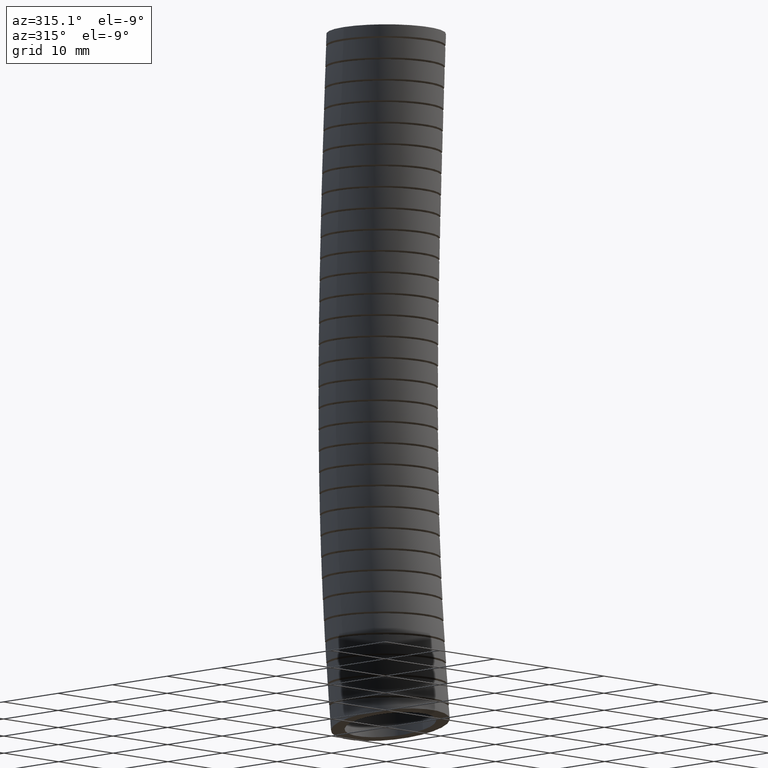
[diagram: clean part render]
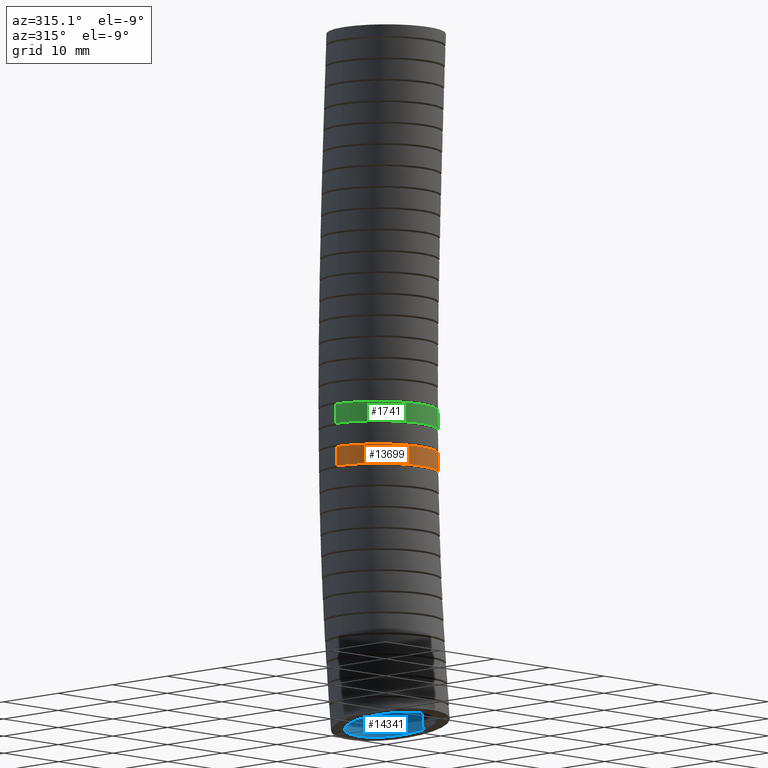
[diagram: same view with three faces highlighted in distinct colors, each labeled with its STEP entity id]
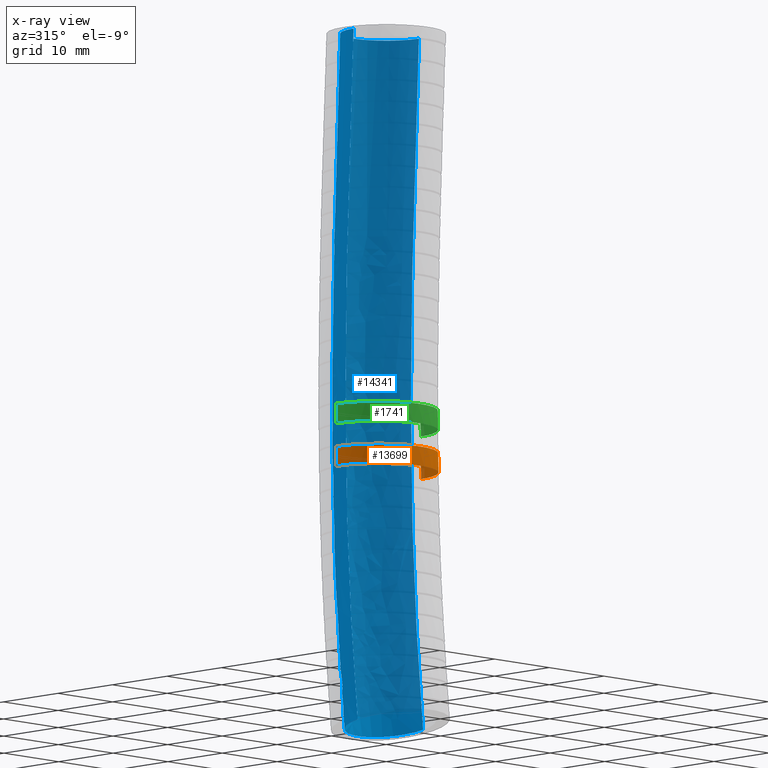
[diagram: x-ray of the same camera — body ghosted, the three highlighted faces saturated]
A machine part, auxiliary view with three faces highlighted in distinct colors.
The next image is the same camera in x-ray (body ghosted, the three faces saturated) — at least one of them is partly hidden behind the body in this view.
Their STEP definitions:

[orange] entity #13699 — the highlighted face is a freeform B-spline surface patch.
#606 = CARTESIAN_POINT ( 'NONE',  ( 0.3050000000000000500, 0.05552407812950403700, -2.158996745682747700 ) ) ;
#607 = B_SPLINE_CURVE_WITH_KNOTS ( 'NONE', 3,
 ( #685, #684, #683, #682 ),
 .UNSPECIFIED., .F., .F.,
 ( 4, 4 ),
 ( 0.6039268719027256500, 0.6319439082966913400 ),
 .UNSPECIFIED. ) ;
#608 = CARTESIAN_POINT ( 'NONE',  ( 0.3050000000000000500, 0.05372310758881908300, -2.258978728082824600 ) ) ;
#645 = CARTESIAN_POINT ( 'NONE',  ( -0.2160703532167436700, -0.1601929831502379400, -2.158996745873789100 ) ) ;
#646 = CARTESIAN_POINT ( 'NONE',  ( -0.2013444713434852100, -0.1735434984261491100, -2.158996745873790900 ) ) ;
#647 = CARTESIAN_POINT ( 'NONE',  ( -0.1859228690909029400, -0.1862015061536203800, -2.158996745873791300 ) ) ;
#648 = CARTESIAN_POINT ( 'NONE',  ( -0.1778165430315290000, -0.1922143481914315200, -2.158996745873790000 ) ) ;
#649 = CARTESIAN_POINT ( 'NONE',  ( -0.1528125071923250000, -0.2089077972052374200, -2.158996745873790400 ) ) ;
#650 = CARTESIAN_POINT ( 'NONE',  ( -0.1352837738353451200, -0.2182580247624102700, -2.158996745873789500 ) ) ;
#651 = CARTESIAN_POINT ( 'NONE',  ( -0.09854926796261420700, -0.2334873408373992200, -2.158996745873789500 ) ) ;
#652 = CARTESIAN_POINT ( 'NONE',  ( -0.07913252365821876700, -0.2393851552424345100, -2.158996745873789500 ) ) ;
#653 = CARTESIAN_POINT ( 'NONE',  ( -0.04005678955513447500, -0.2471616656860284600, -2.158996745873789100 ) ) ;
#654 = CARTESIAN_POINT ( 'NONE',  ( -0.02030109783113058200, -0.2491242151482891700, -2.158996745873788200 ) ) ;
#655 = CARTESIAN_POINT ( 'NONE',  ( 0.009661811462950325000, -0.2491561883190508400, -2.158996745873788600 ) ) ;
#656 = CARTESIAN_POINT ( 'NONE',  ( 0.01975709668933330400, -0.2486701047901576400, -2.158996745873790900 ) ) ;
#657 = CARTESIAN_POINT ( 'NONE',  ( 0.03967496660233263400, -0.2467224047847763300, -2.158996745873790900 ) ) ;
#658 = CARTESIAN_POINT ( 'NONE',  ( 0.04952375081780708400, -0.2452662954858398100, -2.158996745873791300 ) ) ;
#659 = CARTESIAN_POINT ( 'NONE',  ( 0.07874713667787756900, -0.2394839622573247400, -2.158996745873791800 ) ) ;
#660 = CARTESIAN_POINT ( 'NONE',  ( 0.09780194062949937300, -0.2337576078436365000, -2.158996745873789100 ) ) ;
#661 = CARTESIAN_POINT ( 'NONE',  ( 0.1350209045721664800, -0.2184055032823847600, -2.158996745873790000 ) ) ;
#662 = CARTESIAN_POINT ( 'NONE',  ( 0.1525872188871600100, -0.2090236716730639900, -2.158996745873791800 ) ) ;
#663 = CARTESIAN_POINT ( 'NONE',  ( 0.1773845470710647700, -0.1925194661663121600, -2.158996745873790900 ) ) ;
#664 = CARTESIAN_POINT ( 'NONE',  ( 0.1853926913166312200, -0.1866085789379096400, -2.158996745873790900 ) ) ;
#665 = CARTESIAN_POINT ( 'NONE',  ( 0.2008820960759349600, -0.1739493644650735600, -2.158996745873790400 ) ) ;
#666 = CARTESIAN_POINT ( 'NONE',  ( 0.2083841829576125200, -0.1671734393479909500, -2.158996745873789100 ) ) ;
#667 = CARTESIAN_POINT ( 'NONE',  ( 0.2296115997388427100, -0.1460100166946858300, -2.158996745873789100 ) ) ;
#668 = CARTESIAN_POINT ( 'NONE',  ( 0.2422302627812763200, -0.1306811324446731900, -2.158996745873790000 ) ) ;
#669 = CARTESIAN_POINT ( 'NONE',  ( 0.2644300823176574700, -0.09760608516247804000, -2.158996745873789500 ) ) ;
#670 = CARTESIAN_POINT ( 'NONE',  ( 0.2740265475915545400, -0.07972224806242718400, -2.158996745873791300 ) ) ;
#671 = CARTESIAN_POINT ( 'NONE',  ( 0.2892988424305562600, -0.04299853953625917100, -2.158996745873790900 ) ) ;
#672 = CARTESIAN_POINT ( 'NONE',  ( 0.2951095945860873800, -0.02400127102382785400, -2.158996745873789100 ) ) ;
#673 = CARTESIAN_POINT ( 'NONE',  ( 0.3010230848677159000, 0.005470221046165244300, -2.158996745873789500 ) ) ;
#674 = CARTESIAN_POINT ( 'NONE',  ( 0.3025178888908469600, 0.01545610910209722700, -2.158996745873789100 ) ) ;
#675 = CARTESIAN_POINT ( 'NONE',  ( 0.3045015898786372900, 0.03542819802777527600, -2.158996745873789100 ) ) ;
#676 = CARTESIAN_POINT ( 'NONE',  ( 0.3049999999999999900, 0.04545536814849544800, -2.158996745682747700 ) ) ;
#677 = CARTESIAN_POINT ( 'NONE',  ( 0.3050000000000000500, 0.05552407812950403700, -2.158996745682747700 ) ) ;
#679 = B_SPLINE_CURVE_WITH_KNOTS ( 'NONE', 3,
 ( #677, #676, #675, #674, #673, #672, #671, #670, #669, #668, #667, #666, #665, #664, #663, #662, #661, #660, #659, #658, #657, #656, #655, #654, #653, #652, #651, #650, #649, #648, #647, #646, #645, #724, #723, #722, #721, #720, #719, #718, #717, #716, #715 ),
 .UNSPECIFIED., .F., .F.,
 ( 4, 2, 2, 2, 2, 2, 2, 2, 2, 2, 2, 2, 2, 2, 2, 2, 1, 2, 2, 2, 2, 4 ),
 ( 0.0000000000000000000, 0.0007645847613574893300, 0.001529169522714978200, 0.003058339045429956400, 0.004587508568144933600, 0.006116678090859910300, 0.006881262852217398200, 0.007645847613574886100, 0.009175017136289860200, 0.01070418665900483600, 0.01146877142036232200, 0.01223335618171981000, 0.01376252570443478200, 0.01529169522714975500, 0.01682086474986472700, 0.01758544951122221300, 0.01835003427257970300, 0.01911461903393718900, 0.01987920379529467900, 0.02140837331800965800, 0.02293754284072463700, 0.02446671236343961300 ),
 .UNSPECIFIED. ) ;
#682 = CARTESIAN_POINT ( 'NONE',  ( 0.3050000000000000500, 0.05372310758881908300, -2.258978728082824600 ) ) ;
#683 = CARTESIAN_POINT ( 'NONE',  ( 0.3050000000000000500, 0.05442118656744331100, -2.225655353495695100 ) ) ;
#684 = CARTESIAN_POINT ( 'NONE',  ( 0.3050000000000000500, 0.05502004375897306300, -2.192327966736210800 ) ) ;
#685 = CARTESIAN_POINT ( 'NONE',  ( 0.3050000000000000500, 0.05552407812950403700, -2.158996745682747700 ) ) ;
#686 = CARTESIAN_POINT ( 'NONE',  ( 0.03973718846048512200, -0.2490113006111365200, -2.258978728274063700 ) ) ;
#687 = CARTESIAN_POINT ( 'NONE',  ( 0.01985242912400538000, -0.2509740810658708800, -2.258978728274061900 ) ) ;
#688 = CARTESIAN_POINT ( 'NONE',  ( -0.02035010525455989100, -0.2509413165204580400, -2.258978728274061400 ) ) ;
#689 = CARTESIAN_POINT ( 'NONE',  ( -0.04013684577536897500, -0.2489594632021763500, -2.258978728274060100 ) ) ;
#690 = CARTESIAN_POINT ( 'NONE',  ( -0.06936151466278137100, -0.2431406356715986900, -2.258978728274060500 ) ) ;
#691 = CARTESIAN_POINT ( 'NONE',  ( -0.07902660859129269400, -0.2407232146458423700, -2.258978728274061000 ) ) ;
#692 = CARTESIAN_POINT ( 'NONE',  ( -0.09819988211583291500, -0.2349078179767313500, -2.258978728274061000 ) ) ;
#693 = CARTESIAN_POINT ( 'NONE',  ( -0.1077055317459082000, -0.2315029583197430700, -2.258978728274061000 ) ) ;
#694 = CARTESIAN_POINT ( 'NONE',  ( -0.1353580577438489600, -0.2200376456019925700, -2.258978728274061000 ) ) ;
#695 = CARTESIAN_POINT ( 'NONE',  ( -0.1528658860659626300, -0.2106795881659105900, -2.258978728274062800 ) ) ;
#696 = CARTESIAN_POINT ( 'NONE',  ( -0.1777401538879887200, -0.1940768471566060900, -2.258978728274062300 ) ) ;
#697 = CARTESIAN_POINT ( 'NONE',  ( -0.1858378244703216800, -0.1880787908692156400, -2.258978728274061000 ) ) ;
#698 = CARTESIAN_POINT ( 'NONE',  ( -0.2013486790034267300, -0.1753514994261296300, -2.258978728274061000 ) ) ;
#699 = CARTESIAN_POINT ( 'NONE',  ( -0.2087348586017542800, -0.1686520328922428400, -2.258978728274061000 ) ) ;
#700 = CARTESIAN_POINT ( 'NONE',  ( -0.2298164947798399800, -0.1475742193558647300, -2.258978728274060100 ) ) ;
#701 = CARTESIAN_POINT ( 'NONE',  ( -0.2424453803128508700, -0.1322258547035321800, -2.258978728274060100 ) ) ;
#702 = CARTESIAN_POINT ( 'NONE',  ( -0.2591843232138482700, -0.1071984785576389500, -2.258978728274061000 ) ) ;
#703 = CARTESIAN_POINT ( 'NONE',  ( -0.2643599779024637400, -0.09856056822671337100, -2.258978728274060500 ) ) ;
#704 = CARTESIAN_POINT ( 'NONE',  ( -0.2737548485337541500, -0.08098135027092004400, -2.258978728274061400 ) ) ;
#705 = CARTESIAN_POINT ( 'NONE',  ( -0.2822474749125126200, -0.06301973814296216200, -2.258978728274062300 ) ) ;
#706 = CARTESIAN_POINT ( 'NONE',  ( -0.2889568395348479600, -0.04430233410922453800, -2.258978728274061400 ) ) ;
#707 = CARTESIAN_POINT ( 'NONE',  ( -0.2947593488806237700, -0.02520058163349910000, -2.258978728274061400 ) ) ;
#708 = CARTESIAN_POINT ( 'NONE',  ( -0.2972160770550819600, -0.01540185393388456500, -2.258978728274060100 ) ) ;
#709 = CARTESIAN_POINT ( 'NONE',  ( -0.3030688693640173300, 0.01406306044423406800, -2.258978728274060100 ) ) ;
#710 = CARTESIAN_POINT ( 'NONE',  ( -0.3050000000000000500, 0.03383167442773478400, -2.258978728274061900 ) ) ;
#711 = CARTESIAN_POINT ( 'NONE',  ( -0.3050000000000000500, 0.05372310758080686000, -2.258978728274060100 ) ) ;
#712 = B_SPLINE_CURVE_WITH_KNOTS ( 'NONE', 3,
 ( #711, #710, #709, #708, #707, #706, #705, #704, #703, #702, #701, #700, #699, #698, #697, #696, #695, #694, #693, #692, #691, #690, #689, #688, #687, #686, #763, #762, #761, #760, #759, #758, #757, #756, #755, #754, #753, #752, #751, #750, #749, #748, #747, #746, #745 ),
 .UNSPECIFIED., .F., .F.,
 ( 4, 2, 2, 1, 2, 2, 2, 2, 2, 2, 2, 2, 2, 2, 2, 2, 2, 2, 2, 2, 2, 2, 4 ),
 ( 0.02420881050141938900, 0.02572148468539083000, 0.02647782177737655100, 0.02723415886936227100, 0.02799049596134799100, 0.02874683305333371200, 0.03025950723730515600, 0.03101584432929087700, 0.03177218142127660000, 0.03328485560524803400, 0.03404119269723375500, 0.03479752978921947500, 0.03631020397319091600, 0.03782287815716235700, 0.03857921524914807700, 0.03933555234113379800, 0.04084822652510523800, 0.04236090070907667900, 0.04387357489304812000, 0.04462991198503384000, 0.04538624907701956100, 0.04689892326099100200, 0.04841159744496244300 ),
 .UNSPECIFIED. ) ;
#713 = CARTESIAN_POINT ( 'NONE',  ( -0.3050000000000000500, 0.05372310758080686000, -2.258978728274060100 ) ) ;
#714 = CARTESIAN_POINT ( 'NONE',  ( -0.3050000000000000500, 0.05552407812372619400, -2.158996745873789500 ) ) ;
#715 = CARTESIAN_POINT ( 'NONE',  ( -0.3050000000000000500, 0.05552407812372619400, -2.158996745873789500 ) ) ;
#716 = CARTESIAN_POINT ( 'NONE',  ( -0.3050000000000000500, 0.03555708745154077800, -2.158996745873789100 ) ) ;
#717 = CARTESIAN_POINT ( 'NONE',  ( -0.3030539128216768200, 0.01580051646248863800, -2.158996745873790400 ) ) ;
#718 = CARTESIAN_POINT ( 'NONE',  ( -0.2952921392884730900, -0.02329422707917678700, -2.158996745873790400 ) ) ;
#719 = CARTESIAN_POINT ( 'NONE',  ( -0.2893976828093813800, -0.04270677030243409700, -2.158996745873790400 ) ) ;
#720 = CARTESIAN_POINT ( 'NONE',  ( -0.2741698435231080300, -0.07943092477884976200, -2.158996745873790400 ) ) ;
#721 = CARTESIAN_POINT ( 'NONE',  ( -0.2648137927068776000, -0.09696141579209237300, -2.158996745873789100 ) ) ;
#722 = CARTESIAN_POINT ( 'NONE',  ( -0.2480963251122287900, -0.1219762663866003300, -2.158996745873789100 ) ) ;
#723 = CARTESIAN_POINT ( 'NONE',  ( -0.2420850482906330400, -0.1300707562801277100, -2.158996745873790000 ) ) ;
#724 = CARTESIAN_POINT ( 'NONE',  ( -0.2294252568110759800, -0.1454778207616089500, -2.158996745873790400 ) ) ;
#734 = CARTESIAN_POINT ( 'NONE',  ( -0.3050000000000000500, 0.05372310758080686000, -2.258978728274060100 ) ) ;
#735 = CARTESIAN_POINT ( 'NONE',  ( -0.3050000000000000500, 0.05442118656381719800, -2.225655353686936800 ) ) ;
#736 = CARTESIAN_POINT ( 'NONE',  ( -0.3050000000000000500, 0.05502004375571970000, -2.192327966927374700 ) ) ;
#737 = CARTESIAN_POINT ( 'NONE',  ( -0.3050000000000000500, 0.05552407812372619400, -2.158996745873789500 ) ) ;
#742 = B_SPLINE_CURVE_WITH_KNOTS ( 'NONE', 3,
 ( #737, #736, #735, #734 ),
 .UNSPECIFIED., .F., .F.,
 ( 4, 4 ),
 ( 0.6039268719562656000, 0.6319439083503093400 ),
 .UNSPECIFIED. ) ;
#744 = FACE_OUTER_BOUND ( 'NONE', #13703, .T. ) ;
#745 = CARTESIAN_POINT ( 'NONE',  ( 0.3050000000000000500, 0.05372310758881908300, -2.258978728082824600 ) ) ;
#746 = CARTESIAN_POINT ( 'NONE',  ( 0.3050000000000000500, 0.03358579462860256800, -2.258978728082825100 ) ) ;
#747 = CARTESIAN_POINT ( 'NONE',  ( 0.3030210395984815900, 0.01365758677113156200, -2.258978728274060100 ) ) ;
#748 = CARTESIAN_POINT ( 'NONE',  ( 0.2951206254120815100, -0.02578230028877701400, -2.258978728274060500 ) ) ;
#749 = CARTESIAN_POINT ( 'NONE',  ( 0.2892676644044061000, -0.04488747182155816700, -2.258978728274060100 ) ) ;
#750 = CARTESIAN_POINT ( 'NONE',  ( 0.2778279133966465900, -0.07238217218040159100, -2.258978728274059700 ) ) ;
#751 = CARTESIAN_POINT ( 'NONE',  ( 0.2735648318499796500, -0.08136772418112335500, -2.258978728274062300 ) ) ;
#752 = CARTESIAN_POINT ( 'NONE',  ( 0.2641221118958305700, -0.09897339611623159900, -2.258978728274061900 ) ) ;
#753 = CARTESIAN_POINT ( 'NONE',  ( 0.2589110761777875200, -0.1076348629003767800, -2.258978728274062300 ) ) ;
#754 = CARTESIAN_POINT ( 'NONE',  ( 0.2421855288092596400, -0.1325566353722986400, -2.258978728274061900 ) ) ;
#755 = CARTESIAN_POINT ( 'NONE',  ( 0.2295518532892716600, -0.1478777774995053400, -2.258978728274060100 ) ) ;
#756 = CARTESIAN_POINT ( 'NONE',  ( 0.2013683895890116000, -0.1759773569860788600, -2.258978728274060100 ) ) ;
#757 = CARTESIAN_POINT ( 'NONE',  ( 0.1856535848422374800, -0.1888287781951619200, -2.258978728274060100 ) ) ;
#758 = CARTESIAN_POINT ( 'NONE',  ( 0.1525170642560150200, -0.2108777820258258300, -2.258978728274060100 ) ) ;
#759 = CARTESIAN_POINT ( 'NONE',  ( 0.1349945658436751700, -0.2202202319198989800, -2.258978728274060100 ) ) ;
#760 = CARTESIAN_POINT ( 'NONE',  ( 0.1072575538867490800, -0.2316722126004029900, -2.258978728274060100 ) ) ;
#761 = CARTESIAN_POINT ( 'NONE',  ( 0.09773494687668166100, -0.2350643123295229100, -2.258978728274061900 ) ) ;
#762 = CARTESIAN_POINT ( 'NONE',  ( 0.07860479267750182500, -0.2408349439593658300, -2.258978728274061900 ) ) ;
#763 = CARTESIAN_POINT ( 'NONE',  ( 0.06895223815479911700, -0.2432355645894447900, -2.258978728274063700 ) ) ;
#767 =( BOUNDED_SURFACE ( )  B_SPLINE_SURFACE ( 3, 3, ( 
 ( #813, #812, #811, #810, #809, #808 ),
 ( #807, #806, #805, #804, #803, #802 ),
 ( #801, #800, #799, #798, #797, #796 ),
 ( #795, #794, #793, #792, #791, #790 ),
 ( #789, #788, #787, #786, #785, #784 ),
 ( #783, #782, #781, #780, #779, #778 ),
 ( #777, #776, #775, #774, #773, #772 ) ),
 .UNSPECIFIED., .F., .F., .F. ) 
 B_SPLINE_SURFACE_WITH_KNOTS ( ( 4, 3, 4 ),
 ( 4, 1, 1, 4 ),
 ( 0.0000000000000000000, 0.5000000000000000000, 1.000000000000000000 ),
 ( 0.0000000000000000000, 0.5599999999999999400, 0.8398242262648183400, 1.000000000000000000 ),
 .UNSPECIFIED. ) 
 GEOMETRIC_REPRESENTATION_ITEM ( )  RATIONAL_B_SPLINE_SURFACE ( (
 ( 1.000000000000000000, 1.000000000000000000, 1.000000000000000200, 1.000000000000000000, 1.000000000000000000, 1.000000000000000000),
 ( 0.3333333333333333100, 0.3333333333333333100, 0.3333333333333333100, 0.3333333333333333100, 0.3333333333333333100, 0.3333333333333333100),
 ( 0.3333333333333333100, 0.3333333333333333100, 0.3333333333333333100, 0.3333333333333333100, 0.3333333333333333100, 0.3333333333333333100),
 ( 1.000000000000000000, 1.000000000000000000, 1.000000000000000200, 1.000000000000000000, 1.000000000000000000, 1.000000000000000000),
 ( 0.3333333333333333100, 0.3333333333333333100, 0.3333333333333333100, 0.3333333333333333100, 0.3333333333333333100, 0.3333333333333333100),
 ( 0.3333333333333333100, 0.3333333333333333100, 0.3333333333333333100, 0.3333333333333333100, 0.3333333333333333100, 0.3333333333333333100),
 ( 1.000000000000000000, 1.000000000000000000, 1.000000000000000200, 1.000000000000000000, 1.000000000000000000, 1.000000000000000000) ) ) 
 REPRESENTATION_ITEM ( '' )  SURFACE ( )  );
#772 = CARTESIAN_POINT ( 'NONE',  ( 0.3049999999999999900, -0.02999999999999999900, -3.569999999999999400 ) ) ;
#773 = CARTESIAN_POINT ( 'NONE',  ( 0.3049999999999999400, -0.01189670328115252300, -3.380058092153300100 ) ) ;
#774 = CARTESIAN_POINT ( 'NONE',  ( 0.3049999999999999900, 0.03783273064349424600, -2.858291051460112500 ) ) ;
#775 = CARTESIAN_POINT ( 'NONE',  ( 0.3049999999999999900, 0.07694042471324438700, -1.669468061939300500 ) ) ;
#776 = CARTESIAN_POINT ( 'NONE',  ( 0.3050000000000000500, 0.03078003440073750300, -0.6678710777714059700 ) ) ;
#777 = CARTESIAN_POINT ( 'NONE',  ( 0.3050000000000000500, 0.0000000000000000000, 0.0000000000000000000 ) ) ;
#778 = CARTESIAN_POINT ( 'NONE',  ( 0.3049999999999999400, 0.5739397472009051300, -3.655771683852579600 ) ) ;
#779 = CARTESIAN_POINT ( 'NONE',  ( 0.3049999999999999400, 0.5927977391964371900, -3.458550284486119800 ) ) ;
#780 = CARTESIAN_POINT ( 'NONE',  ( 0.3049999999999999400, 0.6446003076157559300, -2.916786610132277200 ) ) ;
#781 = CARTESIAN_POINT ( 'NONE',  ( 0.3050000000000000500, 0.6875905811525232500, -1.687708987936889400 ) ) ;
#782 = CARTESIAN_POINT ( 'NONE',  ( 0.3050000000000000500, 0.6410401296320993300, -0.6751683643642422100 ) ) ;
#783 = CARTESIAN_POINT ( 'NONE',  ( 0.3050000000000000500, 0.6100000000000001000, 0.0000000000000000000 ) ) ;
#784 = CARTESIAN_POINT ( 'NONE',  ( -0.3049999999999998800, 0.5739397472009051300, -3.655771683852579600 ) ) ;
#785 = CARTESIAN_POINT ( 'NONE',  ( -0.3049999999999998800, 0.5927977391964373000, -3.458550284486119800 ) ) ;
#786 = CARTESIAN_POINT ( 'NONE',  ( -0.3049999999999999400, 0.6446003076157562600, -2.916786610132277200 ) ) ;
#787 = CARTESIAN_POINT ( 'NONE',  ( -0.3049999999999999400, 0.6875905811525234700, -1.687708987936889400 ) ) ;
#788 = CARTESIAN_POINT ( 'NONE',  ( -0.3049999999999999400, 0.6410401296320996600, -0.6751683643642422100 ) ) ;
#789 = CARTESIAN_POINT ( 'NONE',  ( -0.3049999999999999400, 0.6100000000000001000, 0.0000000000000000000 ) ) ;
#790 = CARTESIAN_POINT ( 'NONE',  ( -0.3049999999999999900, -0.02999999999999996100, -3.569999999999999400 ) ) ;
#791 = CARTESIAN_POINT ( 'NONE',  ( -0.3049999999999999400, -0.01189670328115248300, -3.380058092153300100 ) ) ;
#792 = CARTESIAN_POINT ( 'NONE',  ( -0.3049999999999999900, 0.03783273064349428100, -2.858291051460112500 ) ) ;
#793 = CARTESIAN_POINT ( 'NONE',  ( -0.3049999999999999900, 0.07694042471324441500, -1.669468061939300500 ) ) ;
#794 = CARTESIAN_POINT ( 'NONE',  ( -0.3050000000000000500, 0.03078003440073754200, -0.6678710777714059700 ) ) ;
#795 = CARTESIAN_POINT ( 'NONE',  ( -0.3050000000000000500, 3.735172737399427600E-017, 0.0000000000000000000 ) ) ;
#796 = CARTESIAN_POINT ( 'NONE',  ( -0.3050000000000000500, -0.6339397472009050700, -3.484228316147418800 ) ) ;
#797 = CARTESIAN_POINT ( 'NONE',  ( -0.3050000000000000500, -0.6165911457587421900, -3.301565899820480900 ) ) ;
#798 = CARTESIAN_POINT ( 'NONE',  ( -0.3050000000000000500, -0.5689348463287677800, -2.799795492787948300 ) ) ;
#799 = CARTESIAN_POINT ( 'NONE',  ( -0.3050000000000001000, -0.5337097317260344200, -1.651227135941712300 ) ) ;
#800 = CARTESIAN_POINT ( 'NONE',  ( -0.3050000000000001600, -0.5794800608306244200, -0.6605737911785694000 ) ) ;
#801 = CARTESIAN_POINT ( 'NONE',  ( -0.3050000000000001000, -0.6100000000000001000, 0.0000000000000000000 ) ) ;
#802 = CARTESIAN_POINT ( 'NONE',  ( 0.3049999999999999400, -0.6339397472009050700, -3.484228316147418800 ) ) ;
#803 = CARTESIAN_POINT ( 'NONE',  ( 0.3049999999999999400, -0.6165911457587421900, -3.301565899820480900 ) ) ;
#804 = CARTESIAN_POINT ( 'NONE',  ( 0.3049999999999999400, -0.5689348463287677800, -2.799795492787948300 ) ) ;
#805 = CARTESIAN_POINT ( 'NONE',  ( 0.3050000000000000500, -0.5337097317260344200, -1.651227135941712300 ) ) ;
#806 = CARTESIAN_POINT ( 'NONE',  ( 0.3050000000000000500, -0.5794800608306244200, -0.6605737911785694000 ) ) ;
#807 = CARTESIAN_POINT ( 'NONE',  ( 0.3050000000000000500, -0.6100000000000001000, 0.0000000000000000000 ) ) ;
#808 = CARTESIAN_POINT ( 'NONE',  ( 0.3049999999999999900, -0.02999999999999999900, -3.569999999999999400 ) ) ;
#809 = CARTESIAN_POINT ( 'NONE',  ( 0.3049999999999999400, -0.01189670328115252300, -3.380058092153300100 ) ) ;
#810 = CARTESIAN_POINT ( 'NONE',  ( 0.3049999999999999900, 0.03783273064349424600, -2.858291051460112500 ) ) ;
#811 = CARTESIAN_POINT ( 'NONE',  ( 0.3049999999999999900, 0.07694042471324438700, -1.669468061939300500 ) ) ;
#812 = CARTESIAN_POINT ( 'NONE',  ( 0.3050000000000000500, 0.03078003440073750300, -0.6678710777714059700 ) ) ;
#813 = CARTESIAN_POINT ( 'NONE',  ( 0.3050000000000000500, 0.0000000000000000000, 0.0000000000000000000 ) ) ;
#13686 = ORIENTED_EDGE ( 'NONE', *, *, #13687, .F. ) ;
#13687 = EDGE_CURVE ( 'NONE', #13690, #13689, #607, .T. ) ;
#13689 = VERTEX_POINT ( 'NONE', #608 ) ;
#13690 = VERTEX_POINT ( 'NONE', #606 ) ;
#13691 = EDGE_CURVE ( 'NONE', #13690, #13692, #679, .T. ) ;
#13692 = VERTEX_POINT ( 'NONE', #714 ) ;
#13693 = EDGE_CURVE ( 'NONE', #13695, #13689, #712, .T. ) ;
#13694 = ORIENTED_EDGE ( 'NONE', *, *, #13691, .T. ) ;
#13695 = VERTEX_POINT ( 'NONE', #713 ) ;
#13696 = ORIENTED_EDGE ( 'NONE', *, *, #13693, .T. ) ;
#13697 = ORIENTED_EDGE ( 'NONE', *, *, #13698, .T. ) ;
#13698 = EDGE_CURVE ( 'NONE', #13692, #13695, #742, .T. ) ;
#13699 = ADVANCED_FACE ( 'NONE', ( #744 ), #767, .T. ) ;
#13703 = EDGE_LOOP ( 'NONE', ( #13694, #13697, #13696, #13686 ) ) ;

[blue] entity #14341 — the highlighted face is a freeform B-spline surface patch.
#1577 = AXIS2_PLACEMENT_3D ( 'NONE', #1585, #1658, #1657 ) ;
#1578 = CIRCLE ( 'NONE', #1577, 0.2349999999999999900 ) ;
#1585 = CARTESIAN_POINT ( 'NONE',  ( 0.0000000000000000000, 0.0000000000000000000, 0.0000000000000000000 ) ) ;
#1657 = DIRECTION ( 'NONE',  ( 1.000000000000000000, 0.0000000000000000000, 0.0000000000000000000 ) ) ;
#1658 = DIRECTION ( 'NONE',  ( 0.0000000000000000000, 0.0000000000000000000, 1.000000000000000000 ) ) ;
#1677 = CARTESIAN_POINT ( 'NONE',  ( -0.2350000000000000100, -0.02999999999999989500, -3.569999999999999000 ) ) ;
#1678 = CARTESIAN_POINT ( 'NONE',  ( -0.2349999999999999600, -0.01189670328115249200, -3.380058092153300100 ) ) ;
#1679 = CARTESIAN_POINT ( 'NONE',  ( -0.2349999999999999600, 0.03783273064349428100, -2.858291051460112500 ) ) ;
#1680 = CARTESIAN_POINT ( 'NONE',  ( -0.2349999999999999300, 0.07694042471324441500, -1.669468061939300800 ) ) ;
#1681 = CARTESIAN_POINT ( 'NONE',  ( -0.2350000000000000100, 0.03078003440073753500, -0.6678710777714059700 ) ) ;
#1682 = CARTESIAN_POINT ( 'NONE',  ( -0.2349999999999999900, 2.877919977996279800E-017, 0.0000000000000000000 ) ) ;
#1684 = B_SPLINE_CURVE_WITH_KNOTS ( 'NONE', 3,
 ( #1682, #1681, #1680, #1679, #1678, #1677 ),
 .UNSPECIFIED., .F., .F.,
 ( 4, 1, 1, 4 ),
 ( 0.0000000000000000000, 0.5599999999999999400, 0.8398242262648183400, 1.000000000000000000 ),
 .UNSPECIFIED. ) ;
#2020 = CARTESIAN_POINT ( 'NONE',  ( 0.2349999999999999900, 0.0000000000000000000, 0.0000000000000000000 ) ) ;
#2414 = CARTESIAN_POINT ( 'NONE',  ( -0.2349999999999999900, 2.877919977996279800E-017, 0.0000000000000000000 ) ) ;
#2466 = DIRECTION ( 'NONE',  ( 1.000000000000000000, 0.0000000000000000000, 0.0000000000000000000 ) ) ;
#2467 = DIRECTION ( 'NONE',  ( 0.0000000000000000000, 0.1406093177911149100, 0.9900651593457461300 ) ) ;
#2468 = AXIS2_PLACEMENT_3D ( 'NONE', #2475, #2467, #2466 ) ;
#2469 = CIRCLE ( 'NONE', #2468, 0.2349999999999999600 ) ;
#2475 = CARTESIAN_POINT ( 'NONE',  ( 0.0000000000000000000, -0.02999999999999998800, -3.569999999999999000 ) ) ;
#2496 = CARTESIAN_POINT ( 'NONE',  ( 0.2349999999999999600, -0.02999999999999998800, -3.569999999999999000 ) ) ;
#2524 = B_SPLINE_CURVE_WITH_KNOTS ( 'NONE', 3,
 ( #2606, #2605, #2604, #2603, #2602, #2601 ),
 .UNSPECIFIED., .F., .F.,
 ( 4, 1, 1, 4 ),
 ( 0.0000000000000000000, 0.5599999999999999400, 0.8398242262648183400, 1.000000000000000000 ),
 .UNSPECIFIED. ) ;
#2598 = FACE_OUTER_BOUND ( 'NONE', #13799, .T. ) ;
#2601 = CARTESIAN_POINT ( 'NONE',  ( 0.2349999999999999600, -0.02999999999999998800, -3.569999999999999000 ) ) ;
#2602 = CARTESIAN_POINT ( 'NONE',  ( 0.2349999999999999600, -0.01189670328115252300, -3.380058092153300100 ) ) ;
#2603 = CARTESIAN_POINT ( 'NONE',  ( 0.2349999999999999600, 0.03783273064349424600, -2.858291051460112500 ) ) ;
#2604 = CARTESIAN_POINT ( 'NONE',  ( 0.2349999999999999300, 0.07694042471324438700, -1.669468061939300800 ) ) ;
#2605 = CARTESIAN_POINT ( 'NONE',  ( 0.2350000000000000100, 0.03078003440073750300, -0.6678710777714059700 ) ) ;
#2606 = CARTESIAN_POINT ( 'NONE',  ( 0.2349999999999999900, 0.0000000000000000000, 0.0000000000000000000 ) ) ;
#2607 = CARTESIAN_POINT ( 'NONE',  ( -0.2350000000000000100, -0.02999999999999989500, -3.569999999999999000 ) ) ;
#2638 = CARTESIAN_POINT ( 'NONE',  ( -0.2349999999999999900, -0.3935605154940687300, -1.655413577973945800 ) ) ;
#2639 = CARTESIAN_POINT ( 'NONE',  ( -0.2350000000000001000, -0.4394203668430987100, -0.6622485782654499200 ) ) ;
#2640 = CARTESIAN_POINT ( 'NONE',  ( -0.2349999999999999900, -0.4699999999999999700, 0.0000000000000000000 ) ) ;
#2641 = CARTESIAN_POINT ( 'NONE',  ( 0.2349999999999999300, -0.4953306248925006300, -3.503913620638175400 ) ) ;
#2642 = CARTESIAN_POINT ( 'NONE',  ( 0.2349999999999999300, -0.4778088146983117100, -3.319580501339487900 ) ) ;
#2643 = CARTESIAN_POINT ( 'NONE',  ( 0.2349999999999999900, -0.4296767139089043800, -2.813220702975002900 ) ) ;
#2644 = CARTESIAN_POINT ( 'NONE',  ( 0.2349999999999999300, -0.3935605154940687300, -1.655413577973945800 ) ) ;
#2645 = CARTESIAN_POINT ( 'NONE',  ( 0.2349999999999999900, -0.4394203668430987100, -0.6622485782654499200 ) ) ;
#2646 = CARTESIAN_POINT ( 'NONE',  ( 0.2349999999999999900, -0.4699999999999999700, 0.0000000000000000000 ) ) ;
#2647 = CARTESIAN_POINT ( 'NONE',  ( 0.2349999999999999600, -0.02999999999999999900, -3.569999999999999400 ) ) ;
#2648 = CARTESIAN_POINT ( 'NONE',  ( 0.2349999999999999600, -0.01189670328115252300, -3.380058092153300100 ) ) ;
#2649 = CARTESIAN_POINT ( 'NONE',  ( 0.2349999999999999600, 0.03783273064349424600, -2.858291051460112500 ) ) ;
#2650 = CARTESIAN_POINT ( 'NONE',  ( 0.2349999999999999300, 0.07694042471324438700, -1.669468061939300500 ) ) ;
#2651 = CARTESIAN_POINT ( 'NONE',  ( 0.2350000000000000100, 0.03078003440073750300, -0.6678710777714059700 ) ) ;
#2652 = CARTESIAN_POINT ( 'NONE',  ( 0.2349999999999999900, 0.0000000000000000000, 0.0000000000000000000 ) ) ;
#2659 =( BOUNDED_SURFACE ( )  B_SPLINE_SURFACE ( 3, 3, ( 
 ( #2652, #2651, #2650, #2649, #2648, #2647 ),
 ( #2646, #2645, #2644, #2643, #2642, #2641 ),
 ( #2640, #2639, #2638, #2687, #2686, #2685 ),
 ( #2684, #2683, #2682, #2681, #2680, #2679 ),
 ( #2678, #2677, #2676, #2675, #2674, #2673 ),
 ( #2672, #2671, #2670, #2669, #2668, #2667 ),
 ( #2666, #2665, #2664, #2663, #2662, #2661 ) ),
 .UNSPECIFIED., .F., .F., .F. ) 
 B_SPLINE_SURFACE_WITH_KNOTS ( ( 4, 3, 4 ),
 ( 4, 1, 1, 4 ),
 ( 0.0000000000000000000, 0.5000000000000000000, 1.000000000000000000 ),
 ( 0.0000000000000000000, 0.5599999999999999400, 0.8398242262648183400, 1.000000000000000000 ),
 .UNSPECIFIED. ) 
 GEOMETRIC_REPRESENTATION_ITEM ( )  RATIONAL_B_SPLINE_SURFACE ( (
 ( 1.000000000000000000, 1.000000000000000000, 1.000000000000000200, 1.000000000000000000, 1.000000000000000000, 1.000000000000000000),
 ( 0.3333333333333333100, 0.3333333333333333100, 0.3333333333333333100, 0.3333333333333333100, 0.3333333333333333100, 0.3333333333333333100),
 ( 0.3333333333333333100, 0.3333333333333333100, 0.3333333333333333100, 0.3333333333333333100, 0.3333333333333333100, 0.3333333333333333100),
 ( 1.000000000000000000, 1.000000000000000000, 1.000000000000000200, 1.000000000000000000, 1.000000000000000000, 1.000000000000000000),
 ( 0.3333333333333333100, 0.3333333333333333100, 0.3333333333333333100, 0.3333333333333333100, 0.3333333333333333100, 0.3333333333333333100),
 ( 0.3333333333333333100, 0.3333333333333333100, 0.3333333333333333100, 0.3333333333333333100, 0.3333333333333333100, 0.3333333333333333100),
 ( 1.000000000000000000, 1.000000000000000000, 1.000000000000000200, 1.000000000000000000, 1.000000000000000000, 1.000000000000000000) ) ) 
 REPRESENTATION_ITEM ( '' )  SURFACE ( )  );
#2661 = CARTESIAN_POINT ( 'NONE',  ( 0.2349999999999999600, -0.02999999999999999900, -3.569999999999999400 ) ) ;
#2662 = CARTESIAN_POINT ( 'NONE',  ( 0.2349999999999999600, -0.01189670328115252300, -3.380058092153300100 ) ) ;
#2663 = CARTESIAN_POINT ( 'NONE',  ( 0.2349999999999999600, 0.03783273064349424600, -2.858291051460112500 ) ) ;
#2664 = CARTESIAN_POINT ( 'NONE',  ( 0.2349999999999999300, 0.07694042471324438700, -1.669468061939300500 ) ) ;
#2665 = CARTESIAN_POINT ( 'NONE',  ( 0.2350000000000000100, 0.03078003440073750300, -0.6678710777714059700 ) ) ;
#2666 = CARTESIAN_POINT ( 'NONE',  ( 0.2349999999999999900, 0.0000000000000000000, 0.0000000000000000000 ) ) ;
#2667 = CARTESIAN_POINT ( 'NONE',  ( 0.2349999999999999300, 0.4353306248925005700, -3.636086379361823400 ) ) ;
#2668 = CARTESIAN_POINT ( 'NONE',  ( 0.2349999999999999300, 0.4540154081360066600, -3.440535682967112800 ) ) ;
#2669 = CARTESIAN_POINT ( 'NONE',  ( 0.2349999999999999900, 0.5053421751958927500, -2.903361399945222600 ) ) ;
#2670 = CARTESIAN_POINT ( 'NONE',  ( 0.2349999999999999300, 0.5474413649205576200, -1.683522545904656300 ) ) ;
#2671 = CARTESIAN_POINT ( 'NONE',  ( 0.2349999999999999900, 0.5009804356445737300, -0.6734935772773617000 ) ) ;
#2672 = CARTESIAN_POINT ( 'NONE',  ( 0.2349999999999999900, 0.4699999999999999700, 0.0000000000000000000 ) ) ;
#2673 = CARTESIAN_POINT ( 'NONE',  ( -0.2349999999999997600, 0.4353306248925005700, -3.636086379361823400 ) ) ;
#2674 = CARTESIAN_POINT ( 'NONE',  ( -0.2349999999999997600, 0.4540154081360066600, -3.440535682967112800 ) ) ;
#2675 = CARTESIAN_POINT ( 'NONE',  ( -0.2349999999999997600, 0.5053421751958927500, -2.903361399945222600 ) ) ;
#2676 = CARTESIAN_POINT ( 'NONE',  ( -0.2349999999999997600, 0.5474413649205576200, -1.683522545904656300 ) ) ;
#2677 = CARTESIAN_POINT ( 'NONE',  ( -0.2349999999999999000, 0.5009804356445737300, -0.6734935772773617000 ) ) ;
#2678 = CARTESIAN_POINT ( 'NONE',  ( -0.2349999999999999000, 0.4699999999999999700, 0.0000000000000000000 ) ) ;
#2679 = CARTESIAN_POINT ( 'NONE',  ( -0.2349999999999999600, -0.02999999999999997100, -3.569999999999999400 ) ) ;
#2680 = CARTESIAN_POINT ( 'NONE',  ( -0.2349999999999999600, -0.01189670328115249200, -3.380058092153300100 ) ) ;
#2681 = CARTESIAN_POINT ( 'NONE',  ( -0.2349999999999999600, 0.03783273064349428100, -2.858291051460112500 ) ) ;
#2682 = CARTESIAN_POINT ( 'NONE',  ( -0.2349999999999999300, 0.07694042471324441500, -1.669468061939300500 ) ) ;
#2683 = CARTESIAN_POINT ( 'NONE',  ( -0.2350000000000000100, 0.03078003440073753500, -0.6678710777714059700 ) ) ;
#2684 = CARTESIAN_POINT ( 'NONE',  ( -0.2349999999999999900, 2.877919977996279800E-017, 0.0000000000000000000 ) ) ;
#2685 = CARTESIAN_POINT ( 'NONE',  ( -0.2349999999999999900, -0.4953306248925006300, -3.503913620638175400 ) ) ;
#2686 = CARTESIAN_POINT ( 'NONE',  ( -0.2349999999999999900, -0.4778088146983117100, -3.319580501339487900 ) ) ;
#2687 = CARTESIAN_POINT ( 'NONE',  ( -0.2349999999999999900, -0.4296767139089043800, -2.813220702975002900 ) ) ;
#13766 = EDGE_CURVE ( 'NONE', #13815, #14087, #1578, .T. ) ;
#13775 = EDGE_CURVE ( 'NONE', #14087, #14336, #1684, .T. ) ;
#13780 = ORIENTED_EDGE ( 'NONE', *, *, #13775, .T. ) ;
#13799 = EDGE_LOOP ( 'NONE', ( #13816, #13780, #14096, #14202 ) ) ;
#13815 = VERTEX_POINT ( 'NONE', #2020 ) ;
#13816 = ORIENTED_EDGE ( 'NONE', *, *, #13766, .T. ) ;
#14087 = VERTEX_POINT ( 'NONE', #2414 ) ;
#14091 = EDGE_CURVE ( 'NONE', #14123, #14336, #2469, .T. ) ;
#14096 = ORIENTED_EDGE ( 'NONE', *, *, #14091, .F. ) ;
#14123 = VERTEX_POINT ( 'NONE', #2496 ) ;
#14202 = ORIENTED_EDGE ( 'NONE', *, *, #14335, .F. ) ;
#14335 = EDGE_CURVE ( 'NONE', #13815, #14123, #2524, .T. ) ;
#14336 = VERTEX_POINT ( 'NONE', #2607 ) ;
#14341 = ADVANCED_FACE ( 'NONE', ( #2598 ), #2659, .F. ) ;

[green] entity #1741 — the highlighted face is a freeform B-spline surface patch.
#94 = ORIENTED_EDGE ( 'NONE', *, *, #460, .F. ) ;
#460 = EDGE_CURVE ( 'NONE', #1796, #529, #6621, .T. ) ;
#466 = EDGE_CURVE ( 'NONE', #1837, #529, #6695, .T. ) ;
#529 = VERTEX_POINT ( 'NONE', #6696 ) ;
#1288 = VERTEX_POINT ( 'NONE', #6786 ) ;
#1449 = EDGE_CURVE ( 'NONE', #1796, #1288, #6862, .T. ) ;
#1564 = EDGE_CURVE ( 'NONE', #1288, #1837, #6886, .T. ) ;
#1570 = EDGE_LOOP ( 'NONE', ( #1925, #1884, #16679, #94 ) ) ;
#1741 = ADVANCED_FACE ( 'NONE', ( #6885 ), #6973, .T. ) ;
#1796 = VERTEX_POINT ( 'NONE', #6983 ) ;
#1837 = VERTEX_POINT ( 'NONE', #6972 ) ;
#1884 = ORIENTED_EDGE ( 'NONE', *, *, #1564, .T. ) ;
#1925 = ORIENTED_EDGE ( 'NONE', *, *, #1449, .T. ) ;
#6621 = B_SPLINE_CURVE_WITH_KNOTS ( 'NONE', 3,
 ( #6626, #6625, #6624, #6623, #6697 ),
 .UNSPECIFIED., .F., .F.,
 ( 4, 1, 4 ),
 ( 0.5423032936289647900, 0.5599999999999999400, 0.5703110303168167400 ),
 .UNSPECIFIED. ) ;
#6623 = CARTESIAN_POINT ( 'NONE',  ( 0.3050000000000000500, 0.05704051604025903900, -2.026734435917735100 ) ) ;
#6624 = CARTESIAN_POINT ( 'NONE',  ( 0.3050000000000000500, 0.05729030170840561400, -1.993404004371821100 ) ) ;
#6625 = CARTESIAN_POINT ( 'NONE',  ( 0.3050000000000000500, 0.05745221989098588100, -1.960070019780755500 ) ) ;
#6626 = CARTESIAN_POINT ( 'NONE',  ( 0.3049999999999999900, 0.05752055676881744800, -1.939006546585109600 ) ) ;
#6652 = CARTESIAN_POINT ( 'NONE',  ( 0.2951203382002889300, -0.02256776366742773600, -2.039004522326255400 ) ) ;
#6653 = CARTESIAN_POINT ( 'NONE',  ( 0.2892672391433412400, -0.04167250930434313700, -2.039004522326254100 ) ) ;
#6654 = CARTESIAN_POINT ( 'NONE',  ( 0.2778272296719324600, -0.06916660403961272200, -2.039004522326253200 ) ) ;
#6655 = CARTESIAN_POINT ( 'NONE',  ( 0.2735640550120647100, -0.07815194922272003500, -2.039004522326253200 ) ) ;
#6656 = CARTESIAN_POINT ( 'NONE',  ( 0.2641211364736151800, -0.09575719817671490800, -2.039004522326252700 ) ) ;
#6657 = CARTESIAN_POINT ( 'NONE',  ( 0.2589099986392796000, -0.1044184382827872800, -2.039004522326254100 ) ) ;
#6658 = CARTESIAN_POINT ( 'NONE',  ( 0.2421842094224710700, -0.1293394393152542400, -2.039004522326253600 ) ) ;
#6659 = CARTESIAN_POINT ( 'NONE',  ( 0.2295503922984702100, -0.1446600470921951300, -2.039004522326254100 ) ) ;
#6660 = CARTESIAN_POINT ( 'NONE',  ( 0.2013667219024908900, -0.1727585515156897500, -2.039004522326254100 ) ) ;
#6661 = CARTESIAN_POINT ( 'NONE',  ( 0.1856518596631482100, -0.1856094186318235100, -2.039004522326255400 ) ) ;
#6662 = CARTESIAN_POINT ( 'NONE',  ( 0.1525153970021582400, -0.2076573705622311000, -2.039004522326255400 ) ) ;
#6663 = CARTESIAN_POINT ( 'NONE',  ( 0.1349929978241455300, -0.2169993280663295400, -2.039004522326253600 ) ) ;
#6664 = CARTESIAN_POINT ( 'NONE',  ( 0.1072562689864723500, -0.2284506693037524600, -2.039004522326253200 ) ) ;
#6665 = CARTESIAN_POINT ( 'NONE',  ( 0.09773375696187280900, -0.2318425813877580700, -2.039004522326255400 ) ) ;
#6666 = CARTESIAN_POINT ( 'NONE',  ( 0.07860379817764308300, -0.2376128921209513200, -2.039004522326255400 ) ) ;
#6667 = CARTESIAN_POINT ( 'NONE',  ( 0.06895135846952671300, -0.2400133742693167900, -2.039004522326254500 ) ) ;
#6668 = CARTESIAN_POINT ( 'NONE',  ( 0.03973670572291113100, -0.2457887715007559300, -2.039004522326254100 ) ) ;
#6669 = CARTESIAN_POINT ( 'NONE',  ( 0.01985243684907795100, -0.2477514286519483500, -2.039004522326253200 ) ) ;
#6670 = CARTESIAN_POINT ( 'NONE',  ( -0.02034964294523988400, -0.2477186964695221600, -2.039004522326254100 ) ) ;
#6671 = CARTESIAN_POINT ( 'NONE',  ( -0.04013612838310910000, -0.2457369662724218900, -2.039004522326254500 ) ) ;
#6672 = CARTESIAN_POINT ( 'NONE',  ( -0.06936037931612956700, -0.2399185089638928600, -2.039004522326253600 ) ) ;
#6673 = CARTESIAN_POINT ( 'NONE',  ( -0.07902532799480849200, -0.2375012424933181400, -2.039004522326253200 ) ) ;
#6674 = CARTESIAN_POINT ( 'NONE',  ( -0.09819829987473084600, -0.2316862252781677100, -2.039004522326253600 ) ) ;
#6675 = CARTESIAN_POINT ( 'NONE',  ( -0.1077039047988068000, -0.2282815535273712000, -2.039004522326256300 ) ) ;
#6676 = CARTESIAN_POINT ( 'NONE',  ( -0.1353563128380591300, -0.2168168454718447900, -2.039004522326255000 ) ) ;
#6677 = CARTESIAN_POINT ( 'NONE',  ( -0.1528640741711671800, -0.2074592664881159400, -2.039004522326253600 ) ) ;
#6678 = CARTESIAN_POINT ( 'NONE',  ( -0.1777382636154678500, -0.1908573645440759000, -2.039004522326254500 ) ) ;
#6679 = CARTESIAN_POINT ( 'NONE',  ( -0.1858358860277955500, -0.1848596343583051900, -2.039004522326251800 ) ) ;
#6680 = CARTESIAN_POINT ( 'NONE',  ( -0.2013468748933473200, -0.1721328370055325000, -2.039004522326251800 ) ) ;
#6681 = CARTESIAN_POINT ( 'NONE',  ( -0.2087331241034846900, -0.1654336219404659600, -2.039004522326251800 ) ) ;
#6682 = CARTESIAN_POINT ( 'NONE',  ( -0.2298149748967695800, -0.1443565744818021100, -2.039004522326251800 ) ) ;
#6683 = CARTESIAN_POINT ( 'NONE',  ( -0.2424440112154260000, -0.1290087360503375000, -2.039004522326253200 ) ) ;
#6684 = CARTESIAN_POINT ( 'NONE',  ( -0.2591831865855234200, -0.1039821680876448200, -2.039004522326253200 ) ) ;
#6685 = CARTESIAN_POINT ( 'NONE',  ( -0.2643589703566926500, -0.09534444518951462600, -2.039004522326253200 ) ) ;
#6686 = CARTESIAN_POINT ( 'NONE',  ( -0.2737540509134891400, -0.07776563543493469900, -2.039004522326253600 ) ) ;
#6687 = CARTESIAN_POINT ( 'NONE',  ( -0.2822468732185391400, -0.05980442247074953300, -2.039004522326250500 ) ) ;
#6688 = CARTESIAN_POINT ( 'NONE',  ( -0.2889564029646664600, -0.04108739841048690600, -2.039004522326252700 ) ) ;
#6689 = CARTESIAN_POINT ( 'NONE',  ( -0.2947590596844969500, -0.02198601526535149500, -2.039004522326252300 ) ) ;
#6690 = CARTESIAN_POINT ( 'NONE',  ( -0.2972158543597407400, -0.01218746384746233900, -2.039004522326253600 ) ) ;
#6691 = CARTESIAN_POINT ( 'NONE',  ( -0.3030688137652572400, 0.01727698059555779800, -2.039004522326253600 ) ) ;
#6692 = CARTESIAN_POINT ( 'NONE',  ( -0.3050000000000002200, 0.03704529071697114400, -2.039004522326252700 ) ) ;
#6693 = CARTESIAN_POINT ( 'NONE',  ( -0.3050000000000000500, 0.05693642930506671200, -2.039004522326254100 ) ) ;
#6695 = B_SPLINE_CURVE_WITH_KNOTS ( 'NONE', 3,
 ( #6693, #6692, #6691, #6690, #6689, #6688, #6687, #6686, #6685, #6684, #6683, #6682, #6681, #6680, #6679, #6678, #6677, #6676, #6675, #6674, #6673, #6672, #6671, #6670, #6669, #6668, #6667, #6666, #6665, #6664, #6663, #6662, #6661, #6660, #6659, #6658, #6657, #6656, #6655, #6654, #6653, #6652, #6735, #6734, #6733 ),
 .UNSPECIFIED., .F., .F.,
 ( 4, 2, 2, 1, 2, 2, 2, 2, 2, 2, 2, 2, 2, 2, 2, 2, 2, 2, 2, 2, 2, 2, 4 ),
 ( 0.02420847047677862600, 0.02572112207169280700, 0.02647744786914989900, 0.02723377366660698800, 0.02799009946406407600, 0.02874642526152116500, 0.03025907685643534200, 0.03101540265389243400, 0.03177172845134951900, 0.03328438004626370400, 0.03404070584372079200, 0.03479703164117788100, 0.03630968323609205800, 0.03782233483100623500, 0.03857866062846332400, 0.03933498642592041200, 0.04084763802083459000, 0.04236028961574876700, 0.04387294121066294400, 0.04462926700812003300, 0.04538559280557712100, 0.04689824440049129900, 0.04841089599540547600 ),
 .UNSPECIFIED. ) ;
#6696 = CARTESIAN_POINT ( 'NONE',  ( 0.3049999999999999400, 0.05693642930192770200, -2.039004522511270100 ) ) ;
#6697 = CARTESIAN_POINT ( 'NONE',  ( 0.3049999999999999400, 0.05693642930192770200, -2.039004522511270100 ) ) ;
#6733 = CARTESIAN_POINT ( 'NONE',  ( 0.3049999999999999400, 0.05693642930192770200, -2.039004522511270100 ) ) ;
#6734 = CARTESIAN_POINT ( 'NONE',  ( 0.3049999999999999900, 0.03679941333530206000, -2.039004522511270100 ) ) ;
#6735 = CARTESIAN_POINT ( 'NONE',  ( 0.3030209824239983300, 0.01687150794774238500, -2.039004522326255400 ) ) ;
#6786 = CARTESIAN_POINT ( 'NONE',  ( -0.3050000000000001000, 0.05752055676757120800, -1.939006546777184000 ) ) ;
#6859 = CARTESIAN_POINT ( 'NONE',  ( 0.3030203863711617400, 0.01757395103844644100, -1.939006546777182900 ) ) ;
#6860 = CARTESIAN_POINT ( 'NONE',  ( 0.3050000000000000500, 0.03737865474803144000, -1.939006546585109800 ) ) ;
#6861 = CARTESIAN_POINT ( 'NONE',  ( 0.3049999999999999900, 0.05752055676881744800, -1.939006546585109600 ) ) ;
#6862 = B_SPLINE_CURVE_WITH_KNOTS ( 'NONE', 3,
 ( #6861, #6860, #6859, #6927, #6926, #6925, #6924, #6923, #6922, #6921, #6920, #6919, #6918, #6917, #6916, #6915, #6914, #6913, #6912, #6911, #6910, #6909, #6908, #6907, #6906, #6905, #6904, #6903, #6902, #6901, #6900, #6899, #6898, #6897, #6896, #6895, #6894, #6893, #6892, #6891, #6890, #6889, #6888 ),
 .UNSPECIFIED., .F., .F.,
 ( 4, 2, 2, 2, 2, 2, 2, 2, 1, 2, 2, 2, 2, 2, 2, 2, 2, 2, 2, 2, 2, 4 ),
 ( 0.0000000000000000000, 0.001513020373854444700, 0.002269530560781666800, 0.003026040747708888100, 0.004539061121563332800, 0.006052081495417777900, 0.007565101869272222200, 0.008321612056199443500, 0.009078122243126665600, 0.009834632430053886000, 0.01059114261698110600, 0.01210416299083554500, 0.01361718336468998600, 0.01513020373854442500, 0.01588671392547164700, 0.01664322411239886600, 0.01815624448625330700, 0.01966926486010774400, 0.02042577504703496600, 0.02118228523396218200, 0.02269530560781662600, 0.02420832598167106300 ),
 .UNSPECIFIED. ) ;
#6882 = CARTESIAN_POINT ( 'NONE',  ( -0.3050000000000001000, 0.05752055676757120800, -1.939006546777184000 ) ) ;
#6885 = FACE_OUTER_BOUND ( 'NONE', #1570, .T. ) ;
#6886 = B_SPLINE_CURVE_WITH_KNOTS ( 'NONE', 3,
 ( #6882, #6943, #6942, #6941, #6940 ),
 .UNSPECIFIED., .F., .F.,
 ( 4, 1, 4 ),
 ( 0.5423032936827565400, 0.5599999999999999400, 0.5703110302649874200 ),
 .UNSPECIFIED. ) ;
#6888 = CARTESIAN_POINT ( 'NONE',  ( -0.3050000000000001000, 0.05752055676757120800, -1.939006546777184000 ) ) ;
#6889 = CARTESIAN_POINT ( 'NONE',  ( -0.3049999999999999900, 0.03762455933860933000, -1.939006546777182400 ) ) ;
#6890 = CARTESIAN_POINT ( 'NONE',  ( -0.3030032085945840700, 0.01741894855182697300, -1.939006546777181500 ) ) ;
#6891 = CARTESIAN_POINT ( 'NONE',  ( -0.2952007074935635300, -0.02163798424884296600, -1.939006546777181800 ) ) ;
#6892 = CARTESIAN_POINT ( 'NONE',  ( -0.2894306873236126600, -0.04064109136897151700, -1.939006546777181800 ) ) ;
#6893 = CARTESIAN_POINT ( 'NONE',  ( -0.2779382191874544300, -0.06834807516732373200, -1.939006546777181800 ) ) ;
#6894 = CARTESIAN_POINT ( 'NONE',  ( -0.2736070496059214700, -0.07748615694209963500, -1.939006546777182000 ) ) ;
#6895 = CARTESIAN_POINT ( 'NONE',  ( -0.2641596574106304700, -0.09511233332996950300, -1.939006546777181500 ) ) ;
#6896 = CARTESIAN_POINT ( 'NONE',  ( -0.2590309401526448300, -0.1036412897254652700, -1.939006546777183100 ) ) ;
#6897 = CARTESIAN_POINT ( 'NONE',  ( -0.2424551105362742200, -0.1283935721347024800, -1.939006546777182900 ) ) ;
#6898 = CARTESIAN_POINT ( 'NONE',  ( -0.2298028921299547800, -0.1438175923278454700, -1.939006546777181500 ) ) ;
#6899 = CARTESIAN_POINT ( 'NONE',  ( -0.2013170113525037700, -0.1722450915664818800, -1.939006546777181800 ) ) ;
#6900 = CARTESIAN_POINT ( 'NONE',  ( -0.1859101728386863600, -0.1848331814753819700, -1.939006546777182900 ) ) ;
#6901 = CARTESIAN_POINT ( 'NONE',  ( -0.1611208718515203500, -0.2013701343591644800, -1.939006546777182900 ) ) ;
#6902 = CARTESIAN_POINT ( 'NONE',  ( -0.1525758640571874300, -0.2064887013670950200, -1.939006546777182600 ) ) ;
#6903 = CARTESIAN_POINT ( 'NONE',  ( -0.1349083857839706300, -0.2159192718184089500, -1.939006546777182900 ) ) ;
#6904 = CARTESIAN_POINT ( 'NONE',  ( -0.1257686770240811800, -0.2202316223498634300, -1.939006546777183100 ) ) ;
#6905 = CARTESIAN_POINT ( 'NONE',  ( -0.09808027960317498900, -0.2316677141337202800, -1.939006546777182600 ) ) ;
#6906 = CARTESIAN_POINT ( 'NONE',  ( -0.07907445627288949000, -0.2374168252051744300, -1.939006546777180400 ) ) ;
#6907 = CARTESIAN_POINT ( 'NONE',  ( -0.03997591780940771400, -0.2451887742066932200, -1.939006546777180900 ) ) ;
#6908 = CARTESIAN_POINT ( 'NONE',  ( -0.01978028373375503500, -0.2471682498898711600, -1.939006546777181300 ) ) ;
#6909 = CARTESIAN_POINT ( 'NONE',  ( 0.01998732531882758300, -0.2471547666988171700, -1.939006546777181800 ) ) ;
#6910 = CARTESIAN_POINT ( 'NONE',  ( 0.03976811871166709800, -0.2452244649676539000, -1.939006546777183300 ) ) ;
#6911 = CARTESIAN_POINT ( 'NONE',  ( 0.06928065466701052700, -0.2393664125321451600, -1.939006546777182600 ) ) ;
#6912 = CARTESIAN_POINT ( 'NONE',  ( 0.07906531070229180800, -0.2369150443054012000, -1.939006546777182600 ) ) ;
#6913 = CARTESIAN_POINT ( 'NONE',  ( 0.09815479200548393700, -0.2311252659313122500, -1.939006546777182600 ) ) ;
#6914 = CARTESIAN_POINT ( 'NONE',  ( 0.1168711760964755800, -0.2244293931951821300, -1.939006546777179800 ) ) ;
#6915 = CARTESIAN_POINT ( 'NONE',  ( 0.1348515027739078400, -0.2159459502206434500, -1.939006546777180700 ) ) ;
#6916 = CARTESIAN_POINT ( 'NONE',  ( 0.1524582122482438500, -0.2065551500474491800, -1.939006546777180900 ) ) ;
#6917 = CARTESIAN_POINT ( 'NONE',  ( 0.1611205895245051700, -0.2013738461447867100, -1.939006546777182400 ) ) ;
#6918 = CARTESIAN_POINT ( 'NONE',  ( 0.1861342828036831600, -0.1846765832948154800, -1.939006546777182900 ) ) ;
#6919 = CARTESIAN_POINT ( 'NONE',  ( 0.2014952320050999200, -0.1720688113345341700, -1.939006546777182900 ) ) ;
#6920 = CARTESIAN_POINT ( 'NONE',  ( 0.2296488736291365000, -0.1439697186554700100, -1.939006546777181500 ) ) ;
#6921 = CARTESIAN_POINT ( 'NONE',  ( 0.2425395889793923500, -0.1282905881318253400, -1.939006546777181300 ) ) ;
#6922 = CARTESIAN_POINT ( 'NONE',  ( 0.2646920503740317600, -0.09516429477070406700, -1.939006546777181300 ) ) ;
#6923 = CARTESIAN_POINT ( 'NONE',  ( 0.2740689323899206900, -0.07765940783644549600, -1.939006546777182400 ) ) ;
#6924 = CARTESIAN_POINT ( 'NONE',  ( 0.2855619711860546400, -0.04997657622530148800, -1.939006546777182400 ) ) ;
#6925 = CARTESIAN_POINT ( 'NONE',  ( 0.2889734100664820800, -0.04045905746999607000, -1.939006546777181300 ) ) ;
#6926 = CARTESIAN_POINT ( 'NONE',  ( 0.2947859948667517200, -0.02130724449982647100, -1.939006546777181500 ) ) ;
#6927 = CARTESIAN_POINT ( 'NONE',  ( 0.2972032123565988600, -0.01164803123638990600, -1.939006546777182600 ) ) ;
#6940 = CARTESIAN_POINT ( 'NONE',  ( -0.3050000000000000500, 0.05693642930506671200, -2.039004522326254100 ) ) ;
#6941 = CARTESIAN_POINT ( 'NONE',  ( -0.3050000000000000500, 0.05704051604118353500, -2.026734435794376800 ) ) ;
#6942 = CARTESIAN_POINT ( 'NONE',  ( -0.3050000000000000500, 0.05729030170822553600, -1.993404004374150100 ) ) ;
#6943 = CARTESIAN_POINT ( 'NONE',  ( -0.3050000000000000500, 0.05745221989036394100, -1.960070019908798400 ) ) ;
#6947 = CARTESIAN_POINT ( 'NONE',  ( -0.3049999999999999900, -0.02999999999999996100, -3.569999999999999400 ) ) ;
#6948 = CARTESIAN_POINT ( 'NONE',  ( -0.3049999999999999400, -0.01189670328115248300, -3.380058092153300100 ) ) ;
#6949 = CARTESIAN_POINT ( 'NONE',  ( -0.3049999999999999900, 0.03783273064349428100, -2.858291051460112500 ) ) ;
#6950 = CARTESIAN_POINT ( 'NONE',  ( -0.3049999999999999900, 0.07694042471324441500, -1.669468061939300500 ) ) ;
#6951 = CARTESIAN_POINT ( 'NONE',  ( -0.3050000000000000500, 0.03078003440073754200, -0.6678710777714059700 ) ) ;
#6952 = CARTESIAN_POINT ( 'NONE',  ( -0.3050000000000000500, 3.735172737399427600E-017, 0.0000000000000000000 ) ) ;
#6953 = CARTESIAN_POINT ( 'NONE',  ( -0.3050000000000000500, -0.6339397472009050700, -3.484228316147418800 ) ) ;
#6954 = CARTESIAN_POINT ( 'NONE',  ( -0.3050000000000000500, -0.6165911457587421900, -3.301565899820480900 ) ) ;
#6955 = CARTESIAN_POINT ( 'NONE',  ( -0.3050000000000000500, -0.5689348463287677800, -2.799795492787948300 ) ) ;
#6956 = CARTESIAN_POINT ( 'NONE',  ( -0.3050000000000001000, -0.5337097317260344200, -1.651227135941712300 ) ) ;
#6957 = CARTESIAN_POINT ( 'NONE',  ( -0.3050000000000001600, -0.5794800608306244200, -0.6605737911785694000 ) ) ;
#6958 = CARTESIAN_POINT ( 'NONE',  ( -0.3050000000000001000, -0.6100000000000001000, 0.0000000000000000000 ) ) ;
#6959 = CARTESIAN_POINT ( 'NONE',  ( 0.3049999999999999400, -0.6339397472009050700, -3.484228316147418800 ) ) ;
#6960 = CARTESIAN_POINT ( 'NONE',  ( 0.3049999999999999400, -0.6165911457587421900, -3.301565899820480900 ) ) ;
#6961 = CARTESIAN_POINT ( 'NONE',  ( 0.3049999999999999400, -0.5689348463287677800, -2.799795492787948300 ) ) ;
#6962 = CARTESIAN_POINT ( 'NONE',  ( 0.3050000000000000500, -0.5337097317260344200, -1.651227135941712300 ) ) ;
#6963 = CARTESIAN_POINT ( 'NONE',  ( 0.3050000000000000500, -0.5794800608306244200, -0.6605737911785694000 ) ) ;
#6964 = CARTESIAN_POINT ( 'NONE',  ( 0.3050000000000000500, -0.6100000000000001000, 0.0000000000000000000 ) ) ;
#6965 = CARTESIAN_POINT ( 'NONE',  ( 0.3049999999999999900, -0.02999999999999999900, -3.569999999999999400 ) ) ;
#6966 = CARTESIAN_POINT ( 'NONE',  ( 0.3049999999999999400, -0.01189670328115252300, -3.380058092153300100 ) ) ;
#6967 = CARTESIAN_POINT ( 'NONE',  ( 0.3049999999999999900, 0.03783273064349424600, -2.858291051460112500 ) ) ;
#6968 = CARTESIAN_POINT ( 'NONE',  ( 0.3049999999999999900, 0.07694042471324438700, -1.669468061939300500 ) ) ;
#6969 = CARTESIAN_POINT ( 'NONE',  ( 0.3050000000000000500, 0.03078003440073750300, -0.6678710777714059700 ) ) ;
#6970 = CARTESIAN_POINT ( 'NONE',  ( 0.3050000000000000500, 0.0000000000000000000, 0.0000000000000000000 ) ) ;
#6972 = CARTESIAN_POINT ( 'NONE',  ( -0.3050000000000000500, 0.05693642930506671200, -2.039004522326254100 ) ) ;
#6973 =( BOUNDED_SURFACE ( )  B_SPLINE_SURFACE ( 3, 3, ( 
 ( #6970, #6969, #6968, #6967, #6966, #6965 ),
 ( #6964, #6963, #6962, #6961, #6960, #6959 ),
 ( #6958, #6957, #6956, #6955, #6954, #6953 ),
 ( #6952, #6951, #6950, #6949, #6948, #6947 ),
 ( #7001, #7000, #6999, #6998, #6997, #6996 ),
 ( #6995, #6994, #6993, #6992, #6991, #6990 ),
 ( #6989, #6988, #6987, #6986, #6985, #6984 ) ),
 .UNSPECIFIED., .F., .F., .F. ) 
 B_SPLINE_SURFACE_WITH_KNOTS ( ( 4, 3, 4 ),
 ( 4, 1, 1, 4 ),
 ( 0.0000000000000000000, 0.5000000000000000000, 1.000000000000000000 ),
 ( 0.0000000000000000000, 0.5599999999999999400, 0.8398242262648183400, 1.000000000000000000 ),
 .UNSPECIFIED. ) 
 GEOMETRIC_REPRESENTATION_ITEM ( )  RATIONAL_B_SPLINE_SURFACE ( (
 ( 1.000000000000000000, 1.000000000000000000, 1.000000000000000200, 1.000000000000000000, 1.000000000000000000, 1.000000000000000000),
 ( 0.3333333333333333100, 0.3333333333333333100, 0.3333333333333333100, 0.3333333333333333100, 0.3333333333333333100, 0.3333333333333333100),
 ( 0.3333333333333333100, 0.3333333333333333100, 0.3333333333333333100, 0.3333333333333333100, 0.3333333333333333100, 0.3333333333333333100),
 ( 1.000000000000000000, 1.000000000000000000, 1.000000000000000200, 1.000000000000000000, 1.000000000000000000, 1.000000000000000000),
 ( 0.3333333333333333100, 0.3333333333333333100, 0.3333333333333333100, 0.3333333333333333100, 0.3333333333333333100, 0.3333333333333333100),
 ( 0.3333333333333333100, 0.3333333333333333100, 0.3333333333333333100, 0.3333333333333333100, 0.3333333333333333100, 0.3333333333333333100),
 ( 1.000000000000000000, 1.000000000000000000, 1.000000000000000200, 1.000000000000000000, 1.000000000000000000, 1.000000000000000000) ) ) 
 REPRESENTATION_ITEM ( '' )  SURFACE ( )  );
#6983 = CARTESIAN_POINT ( 'NONE',  ( 0.3049999999999999900, 0.05752055676881744800, -1.939006546585109600 ) ) ;
#6984 = CARTESIAN_POINT ( 'NONE',  ( 0.3049999999999999900, -0.02999999999999999900, -3.569999999999999400 ) ) ;
#6985 = CARTESIAN_POINT ( 'NONE',  ( 0.3049999999999999400, -0.01189670328115252300, -3.380058092153300100 ) ) ;
#6986 = CARTESIAN_POINT ( 'NONE',  ( 0.3049999999999999900, 0.03783273064349424600, -2.858291051460112500 ) ) ;
#6987 = CARTESIAN_POINT ( 'NONE',  ( 0.3049999999999999900, 0.07694042471324438700, -1.669468061939300500 ) ) ;
#6988 = CARTESIAN_POINT ( 'NONE',  ( 0.3050000000000000500, 0.03078003440073750300, -0.6678710777714059700 ) ) ;
#6989 = CARTESIAN_POINT ( 'NONE',  ( 0.3050000000000000500, 0.0000000000000000000, 0.0000000000000000000 ) ) ;
#6990 = CARTESIAN_POINT ( 'NONE',  ( 0.3049999999999999400, 0.5739397472009051300, -3.655771683852579600 ) ) ;
#6991 = CARTESIAN_POINT ( 'NONE',  ( 0.3049999999999999400, 0.5927977391964371900, -3.458550284486119800 ) ) ;
#6992 = CARTESIAN_POINT ( 'NONE',  ( 0.3049999999999999400, 0.6446003076157559300, -2.916786610132277200 ) ) ;
#6993 = CARTESIAN_POINT ( 'NONE',  ( 0.3050000000000000500, 0.6875905811525232500, -1.687708987936889400 ) ) ;
#6994 = CARTESIAN_POINT ( 'NONE',  ( 0.3050000000000000500, 0.6410401296320993300, -0.6751683643642422100 ) ) ;
#6995 = CARTESIAN_POINT ( 'NONE',  ( 0.3050000000000000500, 0.6100000000000001000, 0.0000000000000000000 ) ) ;
#6996 = CARTESIAN_POINT ( 'NONE',  ( -0.3049999999999998800, 0.5739397472009051300, -3.655771683852579600 ) ) ;
#6997 = CARTESIAN_POINT ( 'NONE',  ( -0.3049999999999998800, 0.5927977391964373000, -3.458550284486119800 ) ) ;
#6998 = CARTESIAN_POINT ( 'NONE',  ( -0.3049999999999999400, 0.6446003076157562600, -2.916786610132277200 ) ) ;
#6999 = CARTESIAN_POINT ( 'NONE',  ( -0.3049999999999999400, 0.6875905811525234700, -1.687708987936889400 ) ) ;
#7000 = CARTESIAN_POINT ( 'NONE',  ( -0.3049999999999999400, 0.6410401296320996600, -0.6751683643642422100 ) ) ;
#7001 = CARTESIAN_POINT ( 'NONE',  ( -0.3049999999999999400, 0.6100000000000001000, 0.0000000000000000000 ) ) ;
#16679 = ORIENTED_EDGE ( 'NONE', *, *, #466, .T. ) ;